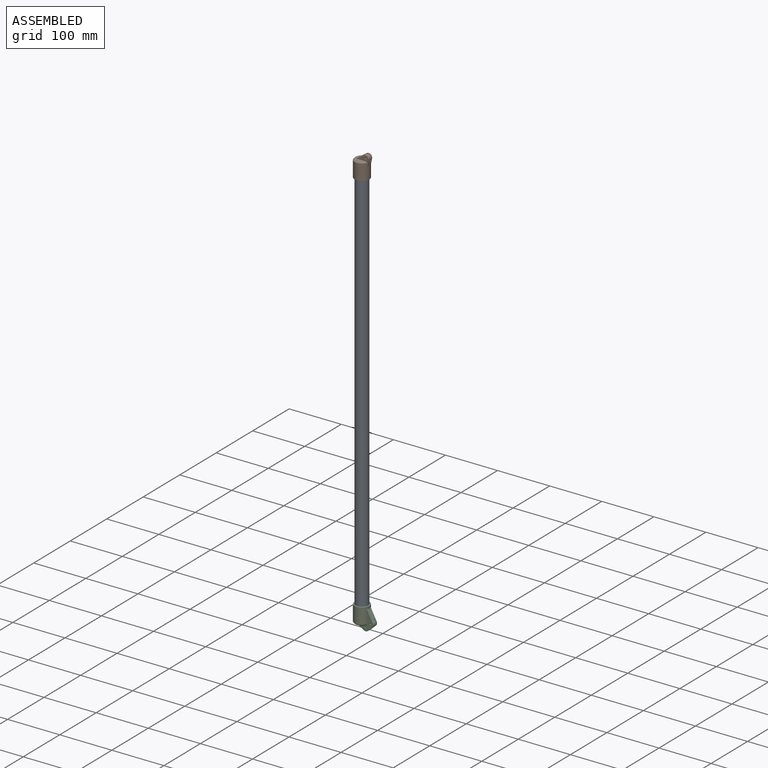
[diagram: assembled view]
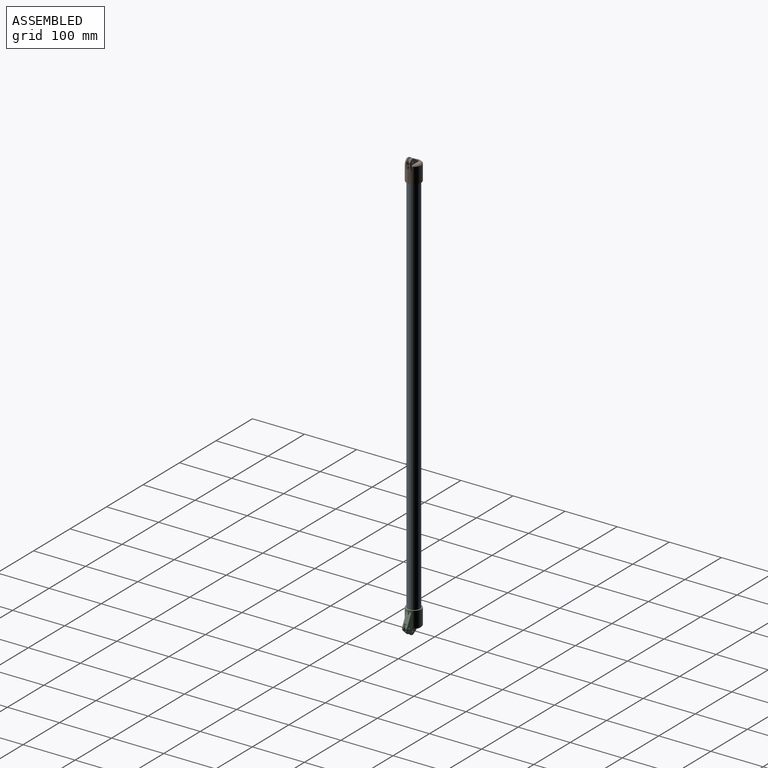
[diagram: assembled view, second angle]
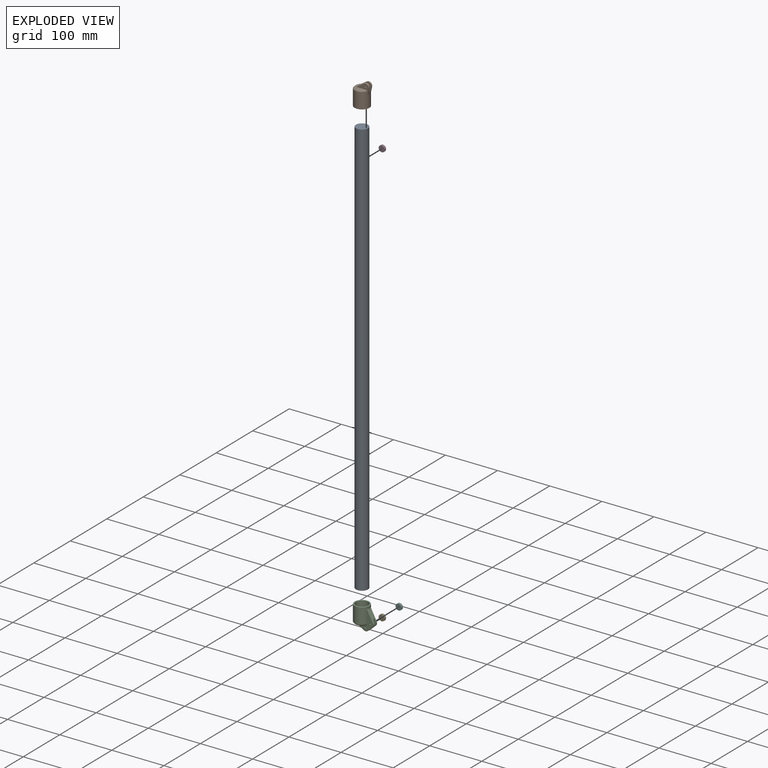
[diagram: exploded view]
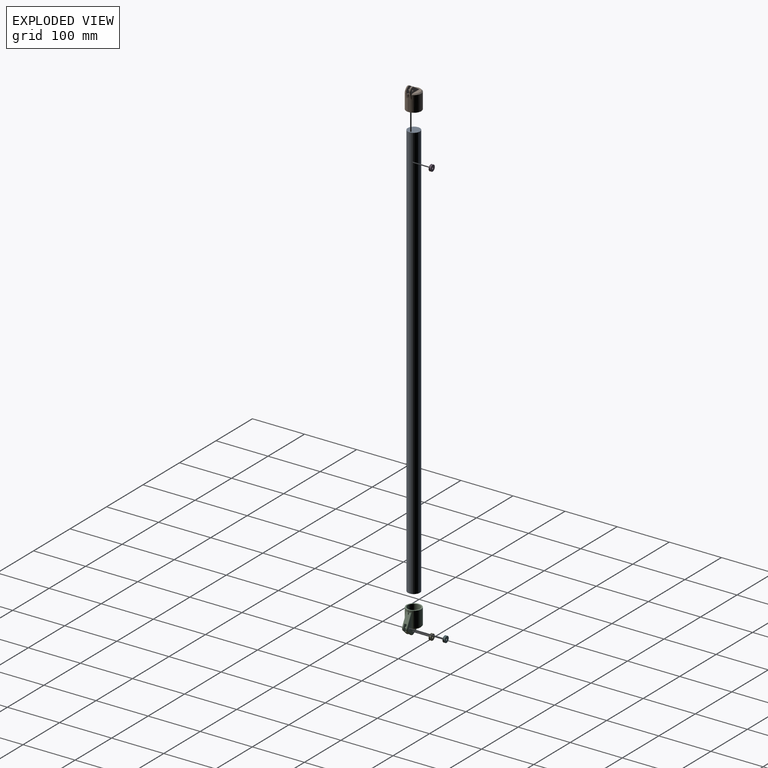
[diagram: exploded view, second angle]
ASSEMBLY  parts=6 mates=5
PART A: 3 faces, bbox 23.4x23.4x800 mm
  f0: cylinder r=11.71mm len=800mm, axis (0,0,-1), area 58857.9mm2, adj f1,f2
  f1: plane 23.42x23.42mm, normal (0,0,1), area 430.7mm2, adj f0
  f2: plane 23.42x23.42mm, normal (0,0,-1), area 430.7mm2, adj f0
PART B: 28 faces, bbox 31.7x28.7x44.3 mm
  f0: plane 13.16x3.78mm, normal (0.98,0,-0.22), area 30.4mm2, adj f1,f4,f13,f15,f20,f25
  f1: cylinder r=6.5mm len=10.04mm, axis (0,1,0), area 27mm2, adj f0,f8,f13,f19
  f2: plane 28.42x28.41mm, normal (0,0,-1), area 188.6mm2, adj f4,f15,f17
  f3: plane 24.42x23.35mm, normal (0,0,1), area 264.2mm2, adj f5,f6,f7,f8,f18,f21
  f4: cylinder r=14.21mm len=30.5mm, axis (0,0,1), area 2631.4mm2, adj f0,f2,f5,f6,f7,f10,f15,f20
  f5: cone r=12.21mm half-angle=45deg, axis (0,0,-1), area 205.6mm2, adj f3,f4,f6,f7
  f6: plane 22.57x16.82mm, normal (0,1,0), area 141.7mm2, adj f3,f4,f5,f18,f19,f20,f26
  f7: plane 22.57x16.82mm, normal (0,-1,0), area 141.7mm2, adj f3,f4,f5,f21,f22,f23,f27
  f8: plane 15.3x9.95mm, normal (-0.55,0,0.84), area 123.1mm2, adj f1,f3,f9,f12,f13,f18,f21,f24
  f9: cylinder r=6.5mm len=10.04mm, axis (0,1,0), area 27mm2, adj f8,f10,f12,f22
  f10: plane 13.16x3.78mm, normal (0.98,0,-0.22), area 30.4mm2, adj f4,f9,f12,f15,f23,f25
  f11: cylinder r=6.5mm len=10.17mm, axis (0,1,0), area 67.8mm2, adj f12,f13,f14,f24,f25
  f12: plane 14.32x13mm, normal (0,1,0), area 131.7mm2, adj f8,f9,f10,f11,f24,f25,f27
  f13: plane 14.32x13mm, normal (0,-1,0), area 131.7mm2, adj f0,f1,f8,f11,f24,f25,f26
  f14: cylinder r=0.8mm len=3.18mm, axis (0,0,-1), area 11.5mm2, adj f11,f16
  f15: cylinder r=0.8mm len=31.81mm, axis (0,0,1), area 46.3mm2, adj f0,f2,f4,f10,f25
  f16: plane 23.82x23.82mm, normal (0,0,-1), area 443.6mm2, adj f14,f17
  f17: cylinder r=11.91mm len=30.2mm, axis (0,0,1), area 2259.8mm2, adj f2,f16
  f18: cylinder r=1mm len=15.85mm, axis (-0.84,0,-0.55), area 27.8mm2, adj f3,f6,f8,f19
  f19: torus R=5.5mm, axis (0,-1,0), area 22.8mm2, adj f1,f6,f18,f20
  f20: cylinder r=1mm len=13.3mm, axis (0.22,0,0.98), area 19.7mm2, adj f0,f4,f6,f19
  f21: cylinder r=1mm len=15.85mm, axis (0.84,0,0.55), area 27.8mm2, adj f3,f7,f8,f22
  f22: torus R=5.5mm, axis (0,-1,0), area 22.8mm2, adj f7,f9,f21,f23
  f23: cylinder r=1mm len=13.3mm, axis (-0.22,0,-0.98), area 19.7mm2, adj f4,f7,f10,f22
  f24: cylinder r=1mm len=4.5mm, axis (0,1,0), area 10.8mm2, adj f8,f11,f12,f13
  f25: cylinder r=1mm len=4.5mm, axis (0,1,0), area 8mm2, adj f0,f10,f11,f12,f13,f15
  f26: cylinder r=1.3mm len=2.75mm, axis (0,-1,0), area 22.5mm2, adj f6,f13
  f27: cylinder r=1.3mm len=2.75mm, axis (0,-1,0), area 22.5mm2, adj f7,f12
PART C: 44 faces, bbox 40.7x28.5x44.1 mm
  f0: cylinder r=0.8mm len=3.18mm, axis (0,0,-1), area 11.5mm2, adj f18,f24
  f1: plane 15.78x9.99mm, normal (-0.53,0,-0.84), area 125.2mm2, adj f4,f7,f13,f21,f22,f26,f31,f39
  f2: cylinder r=6.5mm len=7.81mm, axis (0,1,0), area 14.9mm2, adj f3,f5,f22,f29
  f3: plane 21.82x11.52mm, normal (0.88,0,0.47), area 161.7mm2, adj f2,f8,f12,f21,f22,f23,f30,f35
  f4: cylinder r=6.5mm len=7.89mm, axis (0,1,0), area 14.9mm2, adj f1,f5,f22,f27
  f5: plane 9.2x8.5mm, normal (0.68,0,-0.73), area 54.2mm2, adj f2,f4,f12,f13,f21,f22,f28,f33
  f6: plane 28.42x28.41mm, normal (0,0,1), area 188.6mm2, adj f8,f23,f25
  f7: plane 24.42x23.35mm, normal (0,0,-1), area 260mm2, adj f1,f9,f10,f11,f26,f31
  f8: cylinder r=14.21mm len=30.5mm, axis (0,0,1), area 2449.9mm2, adj f3,f6,f9,f10,f11,f23,f30,f35
  f9: cone r=14.21mm half-angle=45deg, axis (0,0,1), area 205.6mm2, adj f7,f8,f10,f11
  f10: plane 37.41x32.16mm, normal (0,-1,0), area 348.9mm2, adj f7,f8,f9,f31,f32,f33,f34,f35
  f11: plane 37.41x32.16mm, normal (0,1,0), area 348.9mm2, adj f7,f8,f9,f26,f27,f28,f29,f30
  f12: cylinder r=6.5mm len=7.81mm, axis (0,1,0), area 14.9mm2, adj f3,f5,f21,f34
  f13: cylinder r=6.5mm len=7.89mm, axis (0,1,0), area 14.9mm2, adj f1,f5,f21,f32
  f14: cylinder r=6.5mm len=4.5mm, axis (0,1,0), area 13.9mm2, adj f15,f20,f21,f22
  f15: cylinder r=6.5mm len=4.5mm, axis (0,1,0), area 16.2mm2, adj f14,f21,f22,f36
  f16: plane 4.5x2.26mm, normal (0,0,-1), area 10.2mm2, adj f17,f21,f22,f37
  f17: cylinder r=6.5mm len=9.47mm, axis (0,1,0), area 57mm2, adj f16,f18,f21,f22,f23
  f18: cylinder r=6.5mm len=9.92mm, axis (0,1,0), area 59.3mm2, adj f0,f17,f19,f21,f22
  f19: plane 4.5x1.76mm, normal (1,0,0), area 7.9mm2, adj f18,f21,f22,f39
  f20: plane 4.5x0.56mm, normal (-1,0,0), area 2.5mm2, adj f14,f21,f22,f38
  f21: plane 23.74x22.97mm, normal (0,1,0), area 264mm2, adj f1,f3,f5,f12,f13,f14,f15,f16
  f22: plane 23.74x22.97mm, normal (0,-1,0), area 264mm2, adj f1,f2,f3,f4,f5,f14,f15,f16
  f23: cylinder r=0.8mm len=24.88mm, axis (0,0,1), area 96.1mm2, adj f3,f6,f8,f17
  f24: plane 23.82x23.82mm, normal (0,0,1), area 443.6mm2, adj f0,f25
  f25: cylinder r=11.91mm len=30.2mm, axis (0,0,1), area 2259.8mm2, adj f6,f24
  f26: cylinder r=1mm len=16.32mm, axis (0.84,0,-0.53), area 28.4mm2, adj f1,f7,f11,f27
  f27: torus R=5.5mm, axis (0,-1,0), area 12.6mm2, adj f4,f11,f26,f28
  f28: cylinder r=1mm len=9.88mm, axis (0.73,0,0.68), area 19.7mm2, adj f5,f11,f27,f29
  f29: torus R=5.5mm, axis (0,-1,0), area 12.6mm2, adj f2,f11,f28,f30
  f30: cylinder r=1mm len=22.38mm, axis (-0.47,0,0.88), area 38.4mm2, adj f3,f8,f11,f29
  f31: cylinder r=1mm len=16.32mm, axis (-0.84,0,0.53), area 28.4mm2, adj f1,f7,f10,f32
  f32: torus R=5.5mm, axis (0,-1,0), area 12.6mm2, adj f10,f13,f31,f33
  f33: cylinder r=1mm len=9.88mm, axis (-0.73,0,-0.68), area 19.7mm2, adj f5,f10,f32,f34
  f34: torus R=5.5mm, axis (0,-1,0), area 12.6mm2, adj f10,f12,f33,f35
  f35: cylinder r=1mm len=22.38mm, axis (0.47,0,-0.88), area 38.4mm2, adj f3,f8,f10,f34
  f36: cylinder r=1mm len=4.5mm, axis (0,1,0), area 10.8mm2, adj f5,f15,f21,f22
  f37: cylinder r=1mm len=4.5mm, axis (0,1,0), area 9.3mm2, adj f3,f16,f21,f22
  f38: cylinder r=1mm len=4.5mm, axis (0,-1,0), area 10.4mm2, adj f5,f20,f21,f22
  f39: cylinder r=1mm len=4.5mm, axis (0,1,0), area 9.6mm2, adj f1,f19,f21,f22
  f40: cylinder r=1.3mm len=2.75mm, axis (0,-1,0), area 22.5mm2, adj f11,f22
  f41: cylinder r=1.3mm len=2.75mm, axis (0,-1,0), area 22.5mm2, adj f11,f22
  f42: cylinder r=1.3mm len=2.75mm, axis (0,-1,0), area 22.5mm2, adj f10,f21
  f43: cylinder r=1.3mm len=2.75mm, axis (0,-1,0), area 22.5mm2, adj f10,f21
PART D: 12 faces, bbox 12x4x12 mm
  f0: plane 11.4x11.4mm, normal (0,-1,0), area 91.9mm2, adj f10,f11
  f1: cylinder r=1.5mm len=3.4mm, axis (0,-1,0), area 32mm2, adj f9,f10
  f2: plane 11.4x11.4mm, normal (0,1,0), area 91.9mm2, adj f8,f9
  f3: cylinder r=6mm len=12mm, axis (0,-1,0), area 11.3mm2, adj f4,f8
  f4: cone r=6mm half-angle=45deg, axis (0,1,0), area 57.1mm2, adj f3,f7
  f5: cone r=6mm half-angle=45deg, axis (0,-1,0), area 57.1mm2, adj f6,f7
  f6: cylinder r=6mm len=12mm, axis (0,-1,0), area 11.3mm2, adj f5,f11
  f7: cylinder r=4.81mm len=9.62mm, axis (0,1,0), area 12.8mm2, adj f4,f5
  f8: cone r=6mm half-angle=45deg, axis (0,-1,0), area 15.6mm2, adj f2,f3
  f9: cone r=1.8mm half-angle=45deg, axis (0,1,0), area 4.4mm2, adj f1,f2
  f10: cone r=1.5mm half-angle=45deg, axis (0,-1,0), area 4.4mm2, adj f0,f1
  f11: cone r=5.7mm half-angle=45deg, axis (0,1,0), area 15.6mm2, adj f0,f6
PART E: same geometry as D
PART F: same geometry as D
PLACE A t=(232.21,20,0)mm
PLACE B t=(131.71,0,599.8)mm
PLACE C t=(131.71,0,0.2)mm
PLACE D t=(131.71,0,813.8)mm
PLACE E t=(131.71,0,0.2)mm
PLACE F t=(140.91,0,8.7)mm
MATE revolute B.f1 <-> D.f1  axis (0,1,0) through (10.21,0,806.8)mm
MATE fastened B.f4 <-> A.f0  axis (0,0,1) through (0,0,800)mm
MATE revolute C.f4 <-> E.f1  axis (0,1,0) through (10.21,0,-6.8)mm
MATE revolute C.f2 <-> F.f1  axis (0,1,0) through (19.41,0,1.7)mm
MATE fastened A.f0 <-> C.f8  axis (0,0,-1) through (0,0,0)mm
